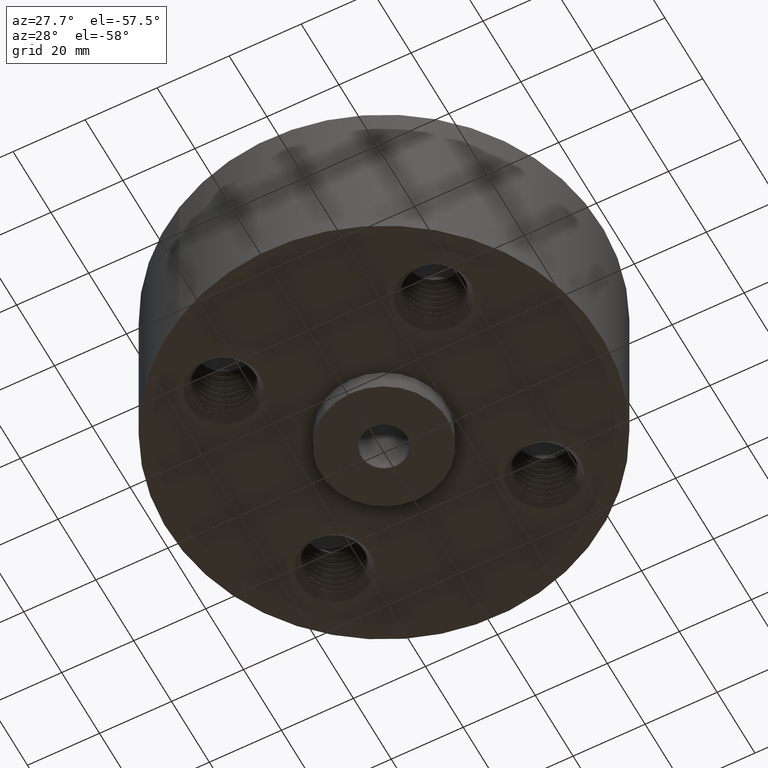
[diagram: clean part render]
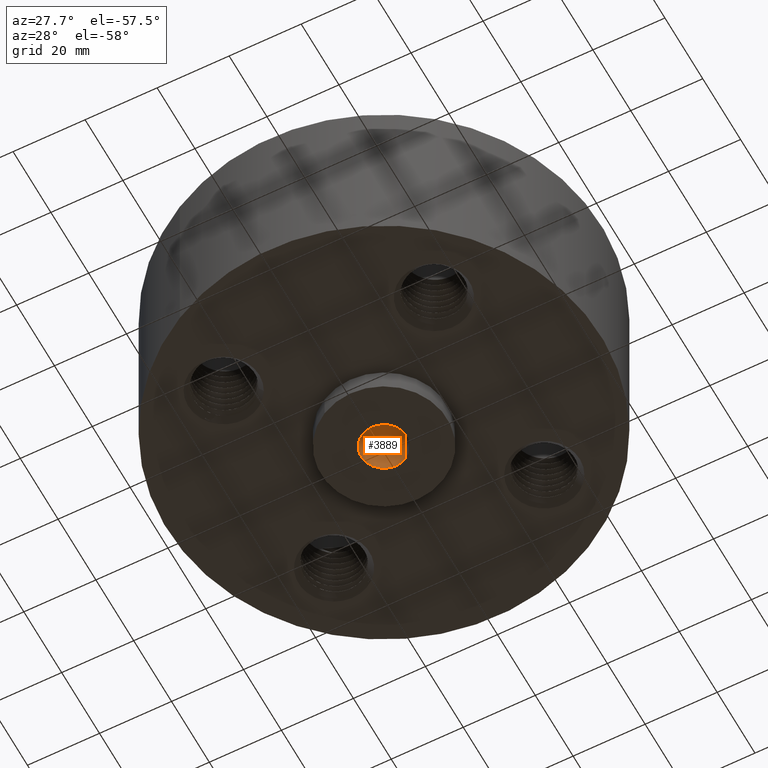
[diagram: same view with one face highlighted and labeled with its STEP entity id]
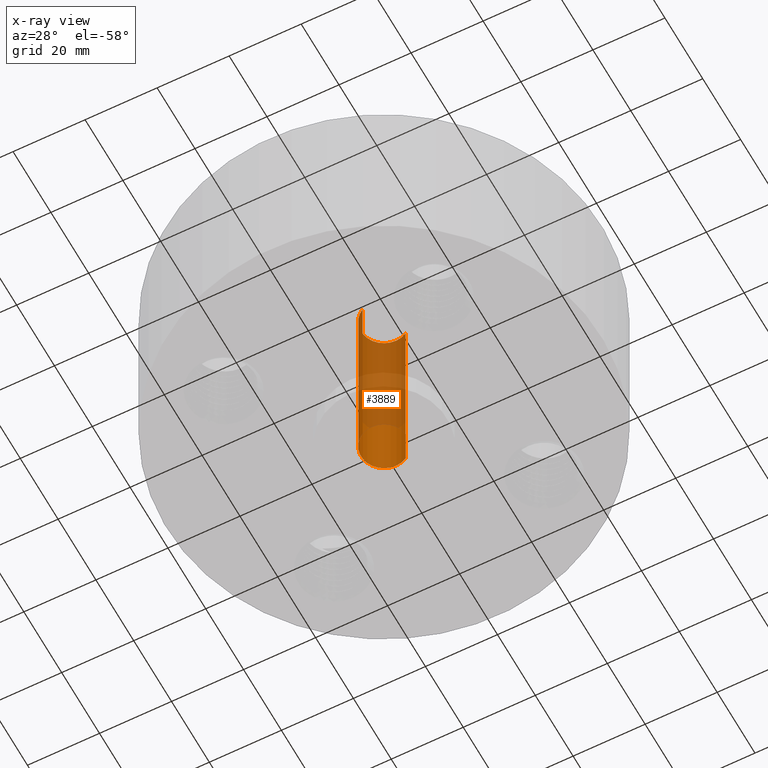
[diagram: x-ray of the same camera — body ghosted, the highlighted face saturated]
A machine part, auxiliary view. The second image highlights one B-rep face of the part: STEP entity #3889.
The next image is the same camera in x-ray: the body ghosted, the highlighted face saturated — about 68% of this face is hidden behind the body in this view.
In plain terms, the highlighted cylindrical surface (edge-blend (fillet) strip) has radius 6.35 mm, axis along (0, 0, -1).
Its self-contained STEP definition (entity closure, byte-faithful):
#3839=AXIS2_PLACEMENT_3D('Circle Axis2P3D',#3837,#3838,$) ;
#3850=AXIS2_PLACEMENT_3D('Cylinder Axis2P3D',#3847,#3848,#3849) ;
#3880=AXIS2_PLACEMENT_3D('Circle Axis2P3D',#3878,#3879,$) ;
#3832=CARTESIAN_POINT('Vertex',(0.119856384652,0.219395640473,-0.250000000001)) ;
#3834=CARTESIAN_POINT('Vertex',(-0.119856384652,-0.219395640473,-0.250000000001)) ;
#3837=CARTESIAN_POINT('Axis2P3D Location',(0.,0.,-0.250000000001)) ;
#3847=CARTESIAN_POINT('Axis2P3D Location',(0.,0.,0.875000000003)) ;
#3856=CARTESIAN_POINT('Vertex',(0.119856384652,0.219395640473,2.00000000001)) ;
#3858=CARTESIAN_POINT('Vertex',(-0.119856384652,-0.219395640473,2.00000000001)) ;
#3861=CARTESIAN_POINT('Line Origine',(0.119856384652,0.219395640473,0.875000000004)) ;
#3866=CARTESIAN_POINT('Line Origine',(-0.119856384652,-0.219395640473,0.875000000004)) ;
#3878=CARTESIAN_POINT('Axis2P3D Location',(0.,0.,2.00000000001)) ;
#3838=DIRECTION('Axis2P3D Direction',(0.,0.,-0.0393700787402)) ;
#3848=DIRECTION('Axis2P3D Direction',(0.,0.,-0.0393700787402)) ;
#3849=DIRECTION('Axis2P3D XDirection',(-0.0188750212049,-0.0345504945626,0.)) ;
#3862=DIRECTION('Vector Direction',(0.,0.,-0.0393700787402)) ;
#3867=DIRECTION('Vector Direction',(0.,0.,-0.0393700787402)) ;
#3879=DIRECTION('Axis2P3D Direction',(0.,0.,-0.0393700787402)) ;
#3863=VECTOR('Line Direction',#3862,0.0393700787402) ;
#3868=VECTOR('Line Direction',#3867,0.0393700787402) ;
#3884=ORIENTED_EDGE('',*,*,#3882,.F.) ;
#3885=ORIENTED_EDGE('',*,*,#3870,.T.) ;
#3886=ORIENTED_EDGE('',*,*,#3841,.T.) ;
#3887=ORIENTED_EDGE('',*,*,#3865,.F.) ;
#3889=ADVANCED_FACE('PartBody',(#3888),#3851,.F.) ;
#3840=CIRCLE('generated circle',#3839,0.250000000001) ;
#3881=CIRCLE('generated circle',#3880,0.250000000001) ;
#3851=CYLINDRICAL_SURFACE('generated cylinder',#3850,0.250000000001) ;
#3841=EDGE_CURVE('',#3835,#3833,#3840,.T.) ;
#3865=EDGE_CURVE('',#3857,#3833,#3864,.T.) ;
#3870=EDGE_CURVE('',#3859,#3835,#3869,.T.) ;
#3882=EDGE_CURVE('',#3859,#3857,#3881,.T.) ;
#3883=EDGE_LOOP('',(#3884,#3885,#3886,#3887)) ;
#3888=FACE_OUTER_BOUND('',#3883,.T.) ;
#3864=LINE('Line',#3861,#3863) ;
#3869=LINE('Line',#3866,#3868) ;
#3833=VERTEX_POINT('',#3832) ;
#3835=VERTEX_POINT('',#3834) ;
#3857=VERTEX_POINT('',#3856) ;
#3859=VERTEX_POINT('',#3858) ;